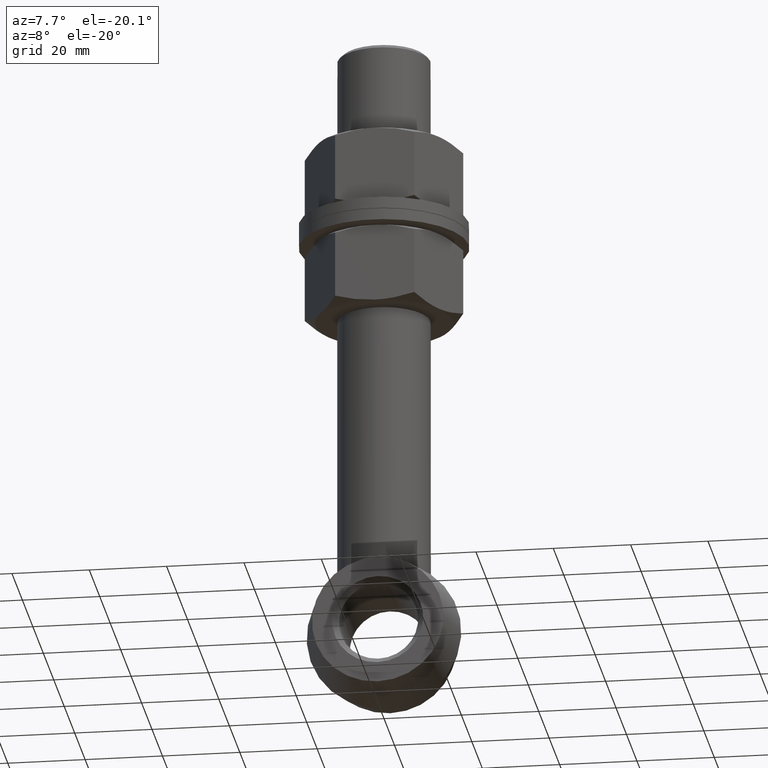
[diagram: clean part render]
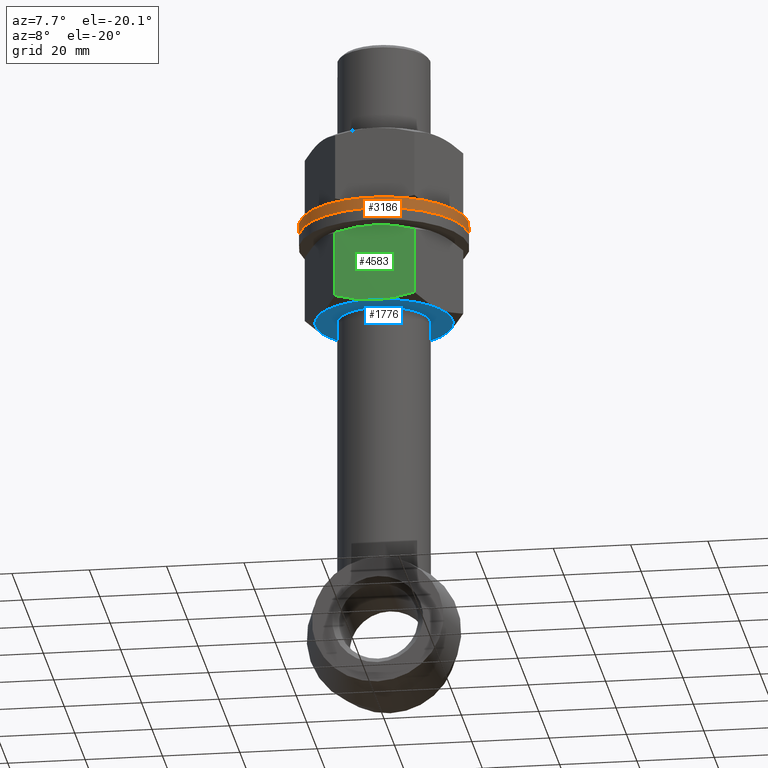
[diagram: same view with three faces highlighted in distinct colors, each labeled with its STEP entity id]
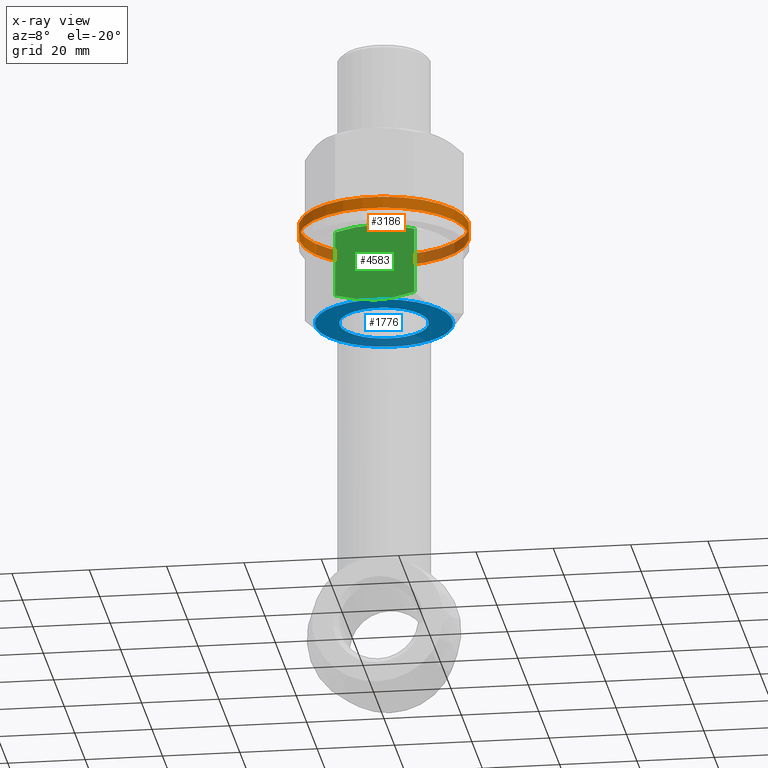
[diagram: x-ray of the same camera — body ghosted, the three highlighted faces saturated]
A machine part, auxiliary view with three faces highlighted in distinct colors.
The next image is the same camera in x-ray (body ghosted, the three faces saturated) — at least one of them is partly hidden behind the body in this view.
Their STEP definitions:

[orange] entity #3186 — the highlighted cylindrical surface (bore or boss wall) has radius 21.9 mm, axis along (-0, -0, -1).
#73 = CARTESIAN_POINT ( 'NONE',  ( 0.000000000000000000, 0.000000000000000000, 1.500000000000000000 ) ) ;
#121 = EDGE_CURVE ( 'NONE', #3299, #3299, #3829, .T. ) ;
#340 = CIRCLE ( 'NONE', #5687, 21.89999999999999858 ) ;
#366 = EDGE_LOOP ( 'NONE', ( #2197 ) ) ;
#708 = VERTEX_POINT ( 'NONE', #4391 ) ;
#797 = DIRECTION ( 'NONE',  ( 1.000000000000000000, 0.000000000000000000, 0.000000000000000000 ) ) ;
#1067 = DIRECTION ( 'NONE',  ( -0.000000000000000000, -0.000000000000000000, -1.000000000000000000 ) ) ;
#1574 = DIRECTION ( 'NONE',  ( 0.000000000000000000, 0.000000000000000000, 1.000000000000000000 ) ) ;
#2031 = FACE_OUTER_BOUND ( 'NONE', #5610, .T. ) ;
#2197 = ORIENTED_EDGE ( 'NONE', *, *, #2823, .T. ) ;
#2249 = AXIS2_PLACEMENT_3D ( 'NONE', #73, #1067, #4505 ) ;
#2775 = CYLINDRICAL_SURFACE ( 'NONE', #2249, 21.89999999999999858 ) ;
#2823 = EDGE_CURVE ( 'NONE', #708, #708, #340, .T. ) ;
#3186 = ADVANCED_FACE ( 'NONE', ( #2031, #4226 ), #2775, .T. ) ;
#3299 = VERTEX_POINT ( 'NONE', #3900 ) ;
#3493 = DIRECTION ( 'NONE',  ( 1.000000000000000000, 0.000000000000000000, 0.000000000000000000 ) ) ;
#3829 = CIRCLE ( 'NONE', #5142, 21.89999999999999858 ) ;
#3900 = CARTESIAN_POINT ( 'NONE',  ( 21.89999999999999858, 0.000000000000000000, 1.500000000000000000 ) ) ;
#4226 = FACE_OUTER_BOUND ( 'NONE', #366, .T. ) ;
#4391 = CARTESIAN_POINT ( 'NONE',  ( 21.89999999999999858, 0.000000000000000000, -1.500000000000000000 ) ) ;
#4505 = DIRECTION ( 'NONE',  ( -1.000000000000000000, 0.000000000000000000, 0.000000000000000000 ) ) ;
#4720 = DIRECTION ( 'NONE',  ( 0.000000000000000000, 0.000000000000000000, 1.000000000000000000 ) ) ;
#5081 = CARTESIAN_POINT ( 'NONE',  ( 0.000000000000000000, 0.000000000000000000, 1.500000000000000000 ) ) ;
#5142 = AXIS2_PLACEMENT_3D ( 'NONE', #5081, #1574, #3493 ) ;
#5610 = EDGE_LOOP ( 'NONE', ( #5747 ) ) ;
#5687 = AXIS2_PLACEMENT_3D ( 'NONE', #5732, #4720, #797 ) ;
#5732 = CARTESIAN_POINT ( 'NONE',  ( 0.000000000000000000, 0.000000000000000000, -1.500000000000000000 ) ) ;
#5747 = ORIENTED_EDGE ( 'NONE', *, *, #121, .F. ) ;

[blue] entity #1776 — the highlighted planar face has unit normal (-0, 0, -1).
#147 = CARTESIAN_POINT ( 'NONE',  ( -15.37195091717368456, -8.874999999999902300, 10.19999999999998685 ) ) ;
#247 = CARTESIAN_POINT ( 'NONE',  ( 0.000000000000000000, 5.088944008015540510E-45, 10.19999999999998685 ) ) ;
#419 = DIRECTION ( 'NONE',  ( 1.000000000000000000, -8.881784197001195525E-15, 0.000000000000000000 ) ) ;
#662 = ORIENTED_EDGE ( 'NONE', *, *, #2746, .F. ) ;
#758 = EDGE_CURVE ( 'NONE', #5823, #2369, #2405, .T. ) ;
#856 = AXIS2_PLACEMENT_3D ( 'NONE', #1400, #6303, #1450 ) ;
#866 = AXIS2_PLACEMENT_3D ( 'NONE', #1918, #3841, #419 ) ;
#908 = DIRECTION ( 'NONE',  ( -8.252768935388529602E-66, 1.000000000000000000, 0.000000000000000000 ) ) ;
#943 = ORIENTED_EDGE ( 'NONE', *, *, #4698, .T. ) ;
#1018 = CARTESIAN_POINT ( 'NONE',  ( 6.307283282297318371E-16, -17.74999999999979750, 10.19999999999998685 ) ) ;
#1140 = PLANE ( 'NONE',  #4379 ) ;
#1210 = ORIENTED_EDGE ( 'NONE', *, *, #4366, .F. ) ;
#1381 = DIRECTION ( 'NONE',  ( -2.052683297350801395E-47, -2.873756616291147817E-46, -1.000000000000000000 ) ) ;
#1400 = CARTESIAN_POINT ( 'NONE',  ( 6.307283282297318371E-16, -2.092587005581580500E-16, 10.19999999999998685 ) ) ;
#1450 = DIRECTION ( 'NONE',  ( 1.000000000000000000, -2.664535259100358027E-14, 0.000000000000000000 ) ) ;
#1639 = DIRECTION ( 'NONE',  ( 1.000000000000000000, -2.229008395045601301E-65, 2.052683297350802610E-47 ) ) ;
#1674 = DIRECTION ( 'NONE',  ( 1.000000000000000000, 0.000000000000000000, 0.000000000000000000 ) ) ;
#1776 = ADVANCED_FACE ( 'NONE', ( #6218, #3624 ), #1140, .T. ) ;
#1823 = EDGE_CURVE ( 'NONE', #3550, #4414, #3768, .T. ) ;
#1912 = AXIS2_PLACEMENT_3D ( 'NONE', #3810, #2382, #908 ) ;
#1918 = CARTESIAN_POINT ( 'NONE',  ( 6.307283282297318371E-16, -2.092587005581580500E-16, 10.19999999999998685 ) ) ;
#2166 = DIRECTION ( 'NONE',  ( -2.052683297350801395E-47, -2.873756616291147817E-46, -1.000000000000000000 ) ) ;
#2223 = CARTESIAN_POINT ( 'NONE',  ( 0.000000000000000000, 5.088944008015540510E-45, 10.19999999999998685 ) ) ;
#2369 = VERTEX_POINT ( 'NONE', #147 ) ;
#2375 = CARTESIAN_POINT ( 'NONE',  ( 6.307283282297318371E-16, -2.092587005581580500E-16, 10.19999999999998685 ) ) ;
#2377 = ORIENTED_EDGE ( 'NONE', *, *, #1823, .F. ) ;
#2382 = DIRECTION ( 'NONE',  ( -2.052683297350818411E-47, 2.051555887825081212E-17, -1.000000000000000000 ) ) ;
#2390 = DIRECTION ( 'NONE',  ( 1.000000000000000000, 6.394884621840860021E-14, 0.000000000000000000 ) ) ;
#2405 = CIRCLE ( 'NONE', #4441, 17.74999999999988987 ) ;
#2448 = EDGE_LOOP ( 'NONE', ( #943 ) ) ;
#2559 = CIRCLE ( 'NONE', #3729, 17.74999999999988987 ) ;
#2568 = ORIENTED_EDGE ( 'NONE', *, *, #3294, .F. ) ;
#2746 = EDGE_CURVE ( 'NONE', #2369, #3550, #2559, .T. ) ;
#2923 = VERTEX_POINT ( 'NONE', #4552 ) ;
#2937 = ORIENTED_EDGE ( 'NONE', *, *, #4301, .F. ) ;
#3294 = EDGE_CURVE ( 'NONE', #4414, #2923, #5353, .T. ) ;
#3315 = DIRECTION ( 'NONE',  ( 1.000000000000000000, -8.881784197001195525E-15, 0.000000000000000000 ) ) ;
#3326 = VERTEX_POINT ( 'NONE', #3880 ) ;
#3550 = VERTEX_POINT ( 'NONE', #4803 ) ;
#3596 = CIRCLE ( 'NONE', #866, 17.74999999999988987 ) ;
#3624 = FACE_OUTER_BOUND ( 'NONE', #4261, .T. ) ;
#3655 = DIRECTION ( 'NONE',  ( -2.052683297350802610E-47, 2.873756616291147817E-46, 1.000000000000000000 ) ) ;
#3729 = AXIS2_PLACEMENT_3D ( 'NONE', #6203, #5717, #5670 ) ;
#3768 = CIRCLE ( 'NONE', #856, 17.74999999999988987 ) ;
#3810 = CARTESIAN_POINT ( 'NONE',  ( 0.000000000000000000, -2.092587005581580500E-16, 10.19999999999998685 ) ) ;
#3841 = DIRECTION ( 'NONE',  ( -2.052683297350801395E-47, -2.873756616291147817E-46, -1.000000000000000000 ) ) ;
#3880 = CARTESIAN_POINT ( 'NONE',  ( 15.37195091717368634, -8.874999999999898748, 10.19999999999998685 ) ) ;
#4141 = AXIS2_PLACEMENT_3D ( 'NONE', #2223, #2166, #1674 ) ;
#4168 = ORIENTED_EDGE ( 'NONE', *, *, #758, .F. ) ;
#4261 = EDGE_LOOP ( 'NONE', ( #1210, #2937, #2568, #2377, #662, #4168 ) ) ;
#4301 = EDGE_CURVE ( 'NONE', #2923, #3326, #5418, .T. ) ;
#4366 = EDGE_CURVE ( 'NONE', #3326, #5823, #3596, .T. ) ;
#4379 = AXIS2_PLACEMENT_3D ( 'NONE', #247, #3655, #1639 ) ;
#4414 = VERTEX_POINT ( 'NONE', #5784 ) ;
#4441 = AXIS2_PLACEMENT_3D ( 'NONE', #2375, #1381, #3315 ) ;
#4552 = CARTESIAN_POINT ( 'NONE',  ( 15.37195091717368101, 8.874999999999905853, 10.19999999999998685 ) ) ;
#4581 = VERTEX_POINT ( 'NONE', #4878 ) ;
#4698 = EDGE_CURVE ( 'NONE', #4581, #4581, #5337, .T. ) ;
#4803 = CARTESIAN_POINT ( 'NONE',  ( -15.37195091717368811, 8.874999999999898748, 10.19999999999998685 ) ) ;
#4878 = CARTESIAN_POINT ( 'NONE',  ( 11.49999999999995381, 5.088944008015540510E-45, 10.19999999999998685 ) ) ;
#5337 = CIRCLE ( 'NONE', #4141, 11.49999999999995381 ) ;
#5353 = CIRCLE ( 'NONE', #1912, 17.74999999999988631 ) ;
#5418 = CIRCLE ( 'NONE', #6103, 17.74999999999988987 ) ;
#5670 = DIRECTION ( 'NONE',  ( 1.000000000000000000, 3.641531520770489471E-14, 0.000000000000000000 ) ) ;
#5717 = DIRECTION ( 'NONE',  ( -2.052683297350801395E-47, -2.873756616291147817E-46, -1.000000000000000000 ) ) ;
#5729 = CARTESIAN_POINT ( 'NONE',  ( 6.307283282297318371E-16, -2.092587005581580500E-16, 10.19999999999998685 ) ) ;
#5784 = CARTESIAN_POINT ( 'NONE',  ( 6.307283282297302594E-16, 17.74999999999979750, 10.19999999999998685 ) ) ;
#5823 = VERTEX_POINT ( 'NONE', #1018 ) ;
#6103 = AXIS2_PLACEMENT_3D ( 'NONE', #5729, #6221, #2390 ) ;
#6203 = CARTESIAN_POINT ( 'NONE',  ( 6.307283282297318371E-16, -2.092587005581580500E-16, 10.19999999999998685 ) ) ;
#6218 = FACE_BOUND ( 'NONE', #2448, .T. ) ;
#6221 = DIRECTION ( 'NONE',  ( -2.052683297350801395E-47, -2.873756616291147817E-46, -1.000000000000000000 ) ) ;
#6303 = DIRECTION ( 'NONE',  ( -2.052683297350801395E-47, -2.873756616291147817E-46, -1.000000000000000000 ) ) ;

[green] entity #4583 — the highlighted planar face has unit normal (0, 1, 0).
#2 = CARTESIAN_POINT ( 'NONE',  ( 8.590805476567290100, 17.74999999999980105, -9.093015350890080839 ) ) ;
#26 = ORIENTED_EDGE ( 'NONE', *, *, #3427, .T. ) ;
#132 = VERTEX_POINT ( 'NONE', #2162 ) ;
#198 = EDGE_LOOP ( 'NONE', ( #3114, #26, #4293, #631, #2810, #4508 ) ) ;
#212 = CARTESIAN_POINT ( 'NONE',  ( -10.24796727811575003, 17.74999999999979394, 8.614633944782539743 ) ) ;
#259 = CARTESIAN_POINT ( 'NONE',  ( 3.481366656301370544, 17.74999999999979394, 10.01664857561150335 ) ) ;
#337 = CARTESIAN_POINT ( 'NONE',  ( -10.24796727811575003, 17.74999999999979394, 10.19999999999998685 ) ) ;
#467 = CARTESIAN_POINT ( 'NONE',  ( -1.732311760220185848, 17.74999999999979394, -10.20000000000014850 ) ) ;
#631 = ORIENTED_EDGE ( 'NONE', *, *, #3629, .T. ) ;
#791 = CARTESIAN_POINT ( 'NONE',  ( 6.307283282297302594E-16, 17.74999999999979750, 10.19999999999998685 ) ) ;
#806 = DIRECTION ( 'NONE',  ( -2.052683297350801395E-47, -2.873756616291147817E-46, -1.000000000000000000 ) ) ;
#910 = CARTESIAN_POINT ( 'NONE',  ( -3.452817535765729140, 17.74999999999979750, -10.05105973812033859 ) ) ;
#941 = CARTESIAN_POINT ( 'NONE',  ( 5.715050110250625278E-16, 17.74999999999979750, -10.19999999999998685 ) ) ;
#991 = CARTESIAN_POINT ( 'NONE',  ( 10.24796727811574648, 17.74999999999979394, -8.614633944782539743 ) ) ;
#1035 = VERTEX_POINT ( 'NONE', #3796 ) ;
#1145 = EDGE_CURVE ( 'NONE', #132, #1488, #1551, .T. ) ;
#1187 = CARTESIAN_POINT ( 'NONE',  ( -3.452817535765725143, 17.74999999999979039, 10.05105973812029596 ) ) ;
#1360 = CARTESIAN_POINT ( 'NONE',  ( -10.24796727811575003, 17.74999999999979394, -8.614633944782539743 ) ) ;
#1441 = CARTESIAN_POINT ( 'NONE',  ( -6.873713277759688545, 17.74999999999978684, -9.499405051728842864 ) ) ;
#1464 = VERTEX_POINT ( 'NONE', #5726 ) ;
#1488 = VERTEX_POINT ( 'NONE', #1360 ) ;
#1551 = B_SPLINE_CURVE_WITH_KNOTS ( 'NONE', 3,
 ( #941, #467, #910, #1441, #3883, #4836 ),
 .UNSPECIFIED., .F., .F.,
 ( 4, 2, 4 ),
 ( 0.05573658604393937760, 0.06092621819951888479, 0.06611585035509839892 ),
 .UNSPECIFIED. ) ;
#1646 = DIRECTION ( 'NONE',  ( -2.052683297350801638E-47, -2.873756616291148206E-46, -1.000000000000000000 ) ) ;
#1862 = AXIS2_PLACEMENT_3D ( 'NONE', #4049, #4550, #1646 ) ;
#1941 = EDGE_CURVE ( 'NONE', #4087, #132, #2974, .T. ) ;
#2117 = CARTESIAN_POINT ( 'NONE',  ( 10.24796727811574648, 17.74999999999979394, 10.19999999999998685 ) ) ;
#2162 = CARTESIAN_POINT ( 'NONE',  ( 5.715050110250625278E-16, 17.74999999999979750, -10.19999999999998685 ) ) ;
#2226 = CARTESIAN_POINT ( 'NONE',  ( -1.732311760220182961, 17.74999999999979394, 10.20000000000010587 ) ) ;
#2250 = CARTESIAN_POINT ( 'NONE',  ( 8.590805476567275889, 17.74999999999979394, 9.093015350890045312 ) ) ;
#2499 = CARTESIAN_POINT ( 'NONE',  ( 6.912142345227925588, 17.74999999999979394, -9.491324071745737001 ) ) ;
#2602 = PLANE ( 'NONE',  #1862 ) ;
#2672 = CARTESIAN_POINT ( 'NONE',  ( 4.345602212099369588, 17.74999999999979394, 9.908000035924548143 ) ) ;
#2810 = ORIENTED_EDGE ( 'NONE', *, *, #1941, .T. ) ;
#2974 = B_SPLINE_CURVE_WITH_KNOTS ( 'NONE', 3,
 ( #5854, #2, #2499, #4932, #3452, #3481, #3422, #4889 ),
 .UNSPECIFIED., .F., .F.,
 ( 4, 2, 2, 4 ),
 ( 0.04535070255921749838, 0.05054364430157844146, 0.05314011517275890606, 0.05573658604393937760 ),
 .UNSPECIFIED. ) ;
#3114 = ORIENTED_EDGE ( 'NONE', *, *, #4785, .F. ) ;
#3117 = DIRECTION ( 'NONE',  ( -2.052683297350801395E-47, -2.873756616291147817E-46, -1.000000000000000000 ) ) ;
#3180 = CARTESIAN_POINT ( 'NONE',  ( 1.736337203376447924, 17.74999999999979394, 10.16315351043110660 ) ) ;
#3422 = CARTESIAN_POINT ( 'NONE',  ( 0.8667082541445929600, 17.74999999999979750, -10.20000000000015028 ) ) ;
#3427 = EDGE_CURVE ( 'NONE', #1464, #4414, #5354, .T. ) ;
#3435 = FACE_OUTER_BOUND ( 'NONE', #198, .T. ) ;
#3452 = CARTESIAN_POINT ( 'NONE',  ( 3.481366656301366547, 17.74999999999979750, -10.01664857561154598 ) ) ;
#3481 = CARTESIAN_POINT ( 'NONE',  ( 1.736337203376442373, 17.74999999999979750, -10.16315351043114745 ) ) ;
#3616 = CARTESIAN_POINT ( 'NONE',  ( -6.873713277759689433, 17.74999999999979750, 9.499405051728809113 ) ) ;
#3629 = EDGE_CURVE ( 'NONE', #1035, #4087, #5424, .T. ) ;
#3645 = CARTESIAN_POINT ( 'NONE',  ( 6.912142345227917595, 17.74999999999979394, 9.491324071745696145 ) ) ;
#3796 = CARTESIAN_POINT ( 'NONE',  ( 10.24796727811574470, 17.74999999999979394, 8.614633944782539743 ) ) ;
#3883 = CARTESIAN_POINT ( 'NONE',  ( -8.580631270039535963, 17.74999999999979394, -9.095952391328873787 ) ) ;
#4049 = CARTESIAN_POINT ( 'NONE',  ( 10.24796727811574648, 17.74999999999979394, 10.19999999999998685 ) ) ;
#4085 = CARTESIAN_POINT ( 'NONE',  ( 6.307283282297302594E-16, 17.74999999999979750, 10.19999999999998685 ) ) ;
#4087 = VERTEX_POINT ( 'NONE', #991 ) ;
#4254 = EDGE_CURVE ( 'NONE', #4414, #1035, #5031, .T. ) ;
#4293 = ORIENTED_EDGE ( 'NONE', *, *, #4254, .T. ) ;
#4414 = VERTEX_POINT ( 'NONE', #5784 ) ;
#4508 = ORIENTED_EDGE ( 'NONE', *, *, #1145, .T. ) ;
#4550 = DIRECTION ( 'NONE',  ( 2.229008395045601301E-65, -1.000000000000000000, 2.873756616291148206E-46 ) ) ;
#4583 = ADVANCED_FACE ( 'NONE', ( #3435 ), #2602, .F. ) ;
#4785 = EDGE_CURVE ( 'NONE', #1464, #1488, #5033, .T. ) ;
#4836 = CARTESIAN_POINT ( 'NONE',  ( -10.24796727811575003, 17.74999999999979394, -8.614633944782539743 ) ) ;
#4889 = CARTESIAN_POINT ( 'NONE',  ( 5.715050110250625278E-16, 17.74999999999979750, -10.19999999999998685 ) ) ;
#4932 = CARTESIAN_POINT ( 'NONE',  ( 4.345602212099376693, 17.74999999999979394, -9.908000035924585447 ) ) ;
#5031 = B_SPLINE_CURVE_WITH_KNOTS ( 'NONE', 3,
 ( #791, #5599, #3180, #259, #2672, #3645, #2250, #5092 ),
 .UNSPECIFIED., .F., .F.,
 ( 4, 2, 2, 4 ),
 ( 0.02885390239379869576, 0.03144787924543133995, 0.03404185609706399107, 0.03922980980032928638 ),
 .UNSPECIFIED. ) ;
#5033 = LINE ( 'NONE', #337, #5493 ) ;
#5092 = CARTESIAN_POINT ( 'NONE',  ( 10.24796727811574470, 17.74999999999979394, 8.614633944782539743 ) ) ;
#5112 = CARTESIAN_POINT ( 'NONE',  ( -8.580631270039527081, 17.74999999999979750, 9.095952391328838260 ) ) ;
#5354 = B_SPLINE_CURVE_WITH_KNOTS ( 'NONE', 3,
 ( #212, #5112, #3616, #1187, #2226, #4085 ),
 .UNSPECIFIED., .F., .F.,
 ( 4, 2, 4 ),
 ( 0.01848460780283616919, 0.02366925509831743421, 0.02885390239379869576 ),
 .UNSPECIFIED. ) ;
#5424 = LINE ( 'NONE', #2117, #5887 ) ;
#5493 = VECTOR ( 'NONE', #806, 1000.000000000000000 ) ;
#5599 = CARTESIAN_POINT ( 'NONE',  ( 0.8667082541445974009, 17.74999999999979394, 10.20000000000011475 ) ) ;
#5726 = CARTESIAN_POINT ( 'NONE',  ( -10.24796727811575003, 17.74999999999979394, 8.614633944782539743 ) ) ;
#5784 = CARTESIAN_POINT ( 'NONE',  ( 6.307283282297302594E-16, 17.74999999999979750, 10.19999999999998685 ) ) ;
#5854 = CARTESIAN_POINT ( 'NONE',  ( 10.24796727811574648, 17.74999999999979394, -8.614633944782539743 ) ) ;
#5887 = VECTOR ( 'NONE', #3117, 1000.000000000000000 ) ;